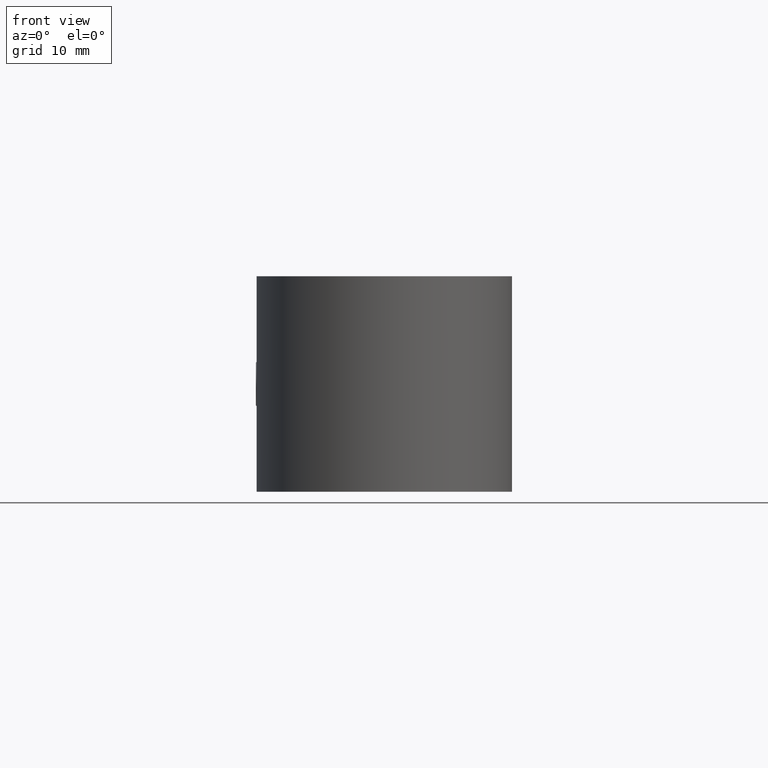
[diagram: clean part render]
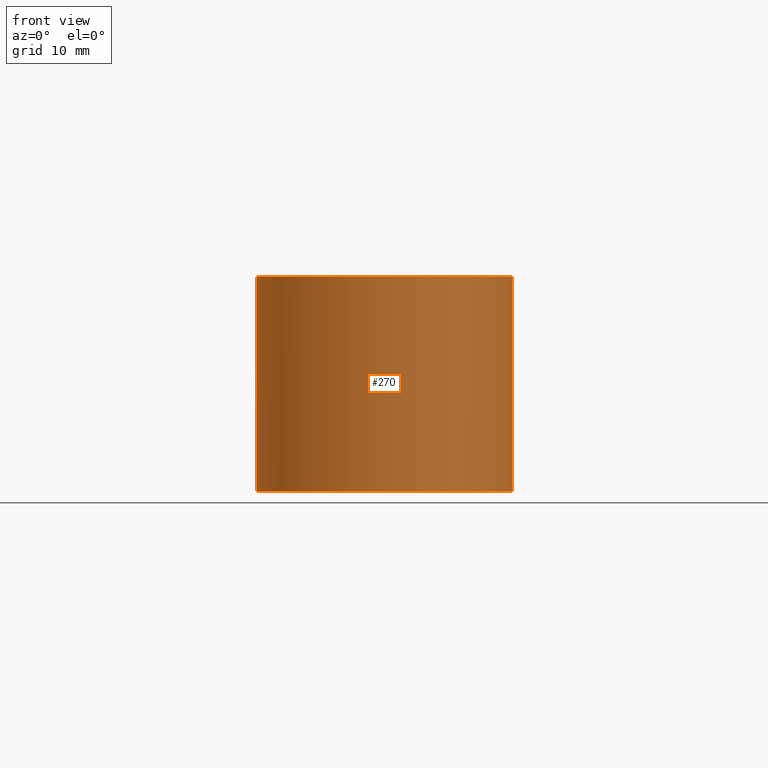
[diagram: same view with one face highlighted and labeled with its STEP entity id]
A machine part, front view. The second image highlights one B-rep face of the part: STEP entity #270.
In plain terms, the highlighted cylindrical surface (partial cylindrical patch) has radius 14.89 mm, axis along (0, 0, -1).
Its self-contained STEP definition (entity closure, byte-faithful):
#270 = ADVANCED_FACE( '', ( #376 ), #377, .T. );
#376 = FACE_OUTER_BOUND( '', #608, .T. );
#377 = CYLINDRICAL_SURFACE( '', #609, 14.8900000000000 );
#608 = EDGE_LOOP( '', ( #863, #864, #865, #866, #867, #868, #869, #870, #871, #872, #873, #874 ) );
#609 = AXIS2_PLACEMENT_3D( '', #875, #876, #877 );
#863 = ORIENTED_EDGE( '', *, *, #1635, .F. );
#864 = ORIENTED_EDGE( '', *, *, #1634, .T. );
#865 = ORIENTED_EDGE( '', *, *, #1636, .F. );
#866 = ORIENTED_EDGE( '', *, *, #1637, .F. );
#867 = ORIENTED_EDGE( '', *, *, #1638, .F. );
#868 = ORIENTED_EDGE( '', *, *, #1639, .F. );
#869 = ORIENTED_EDGE( '', *, *, #1640, .F. );
#870 = ORIENTED_EDGE( '', *, *, #1641, .F. );
#871 = ORIENTED_EDGE( '', *, *, #1623, .T. );
#872 = ORIENTED_EDGE( '', *, *, #1642, .T. );
#873 = ORIENTED_EDGE( '', *, *, #1643, .F. );
#874 = ORIENTED_EDGE( '', *, *, #1644, .F. );
#875 = CARTESIAN_POINT( '', ( 0.000000000000000, 0.000000000000000, -12.5000000000000 ) );
#876 = DIRECTION( '', ( 0.000000000000000, 0.000000000000000, -1.00000000000000 ) );
#877 = DIRECTION( '', ( -1.00000000000000, 6.06692130572647E-017, 0.000000000000000 ) );
#1623 = EDGE_CURVE( '', #1869, #1867, #1870, .T. );
#1634 = EDGE_CURVE( '', #1884, #1888, #1890, .T. );
#1635 = EDGE_CURVE( '', #1884, #1891, #1892, .F. );
#1636 = EDGE_CURVE( '', #1893, #1888, #1894, .T. );
#1637 = EDGE_CURVE( '', #1895, #1893, #1896, .T. );
#1638 = EDGE_CURVE( '', #1897, #1895, #1898, .F. );
#1639 = EDGE_CURVE( '', #1899, #1897, #1900, .T. );
#1640 = EDGE_CURVE( '', #1901, #1899, #1902, .F. );
#1641 = EDGE_CURVE( '', #1869, #1901, #1903, .T. );
#1642 = EDGE_CURVE( '', #1867, #1904, #1905, .T. );
#1643 = EDGE_CURVE( '', #1906, #1904, #1907, .F. );
#1644 = EDGE_CURVE( '', #1891, #1906, #1908, .T. );
#1867 = VERTEX_POINT( '', #2271 );
#1869 = VERTEX_POINT( '', #2273 );
#1870 = CIRCLE( '', #2274, 14.8900000000000 );
#1884 = VERTEX_POINT( '', #2292 );
#1888 = VERTEX_POINT( '', #2297 );
#1890 = LINE( '', #2299, #2300 );
#1891 = VERTEX_POINT( '', #2301 );
#1892 = ELLIPSE( '', #2302, 25.9599227867982, 14.8900000000000 );
#1893 = VERTEX_POINT( '', #2303 );
#1894 = CIRCLE( '', #2304, 14.8900000000000 );
#1895 = VERTEX_POINT( '', #2305 );
#1896 = LINE( '', #2306, #2307 );
#1897 = VERTEX_POINT( '', #2308 );
#1898 = ELLIPSE( '', #2309, 25.9599227867982, 14.8900000000000 );
#1899 = VERTEX_POINT( '', #2310 );
#1900 = B_SPLINE_CURVE_WITH_KNOTS( '', 3, ( #2311, #2312, #2313, #2314, #2315, #2316, #2317, #2318, #2319, #2320, #2321, #2322, #2323, #2324, #2325, #2326, #2327, #2328 ), .UNSPECIFIED., .F., .F., ( 4, 2, 2, 2, 2, 2, 2, 2, 4 ), ( 1.22663473334670E-018, 0.000680424414248581, 0.00136084882849716, 0.00204127324274574, 0.00272169765699432, 0.00340212207124290, 0.00408254648549148, 0.00476297089974006, 0.00544339531398864 ), .UNSPECIFIED. );
#1901 = VERTEX_POINT( '', #2329 );
#1902 = ELLIPSE( '', #2330, 25.9599227867981, 14.8900000000000 );
#1903 = LINE( '', #2331, #2332 );
#1904 = VERTEX_POINT( '', #2333 );
#1905 = LINE( '', #2334, #2335 );
#1906 = VERTEX_POINT( '', #2336 );
#1907 = ELLIPSE( '', #2337, 25.9599227867981, 14.8900000000000 );
#1908 = B_SPLINE_CURVE_WITH_KNOTS( '', 3, ( #2338, #2339, #2340, #2341, #2342, #2343, #2344, #2345, #2346, #2347, #2348, #2349, #2350, #2351, #2352, #2353, #2354, #2355, #2356, #2357 ), .UNSPECIFIED., .F., .F., ( 4, 2, 2, 2, 2, 2, 2, 2, 2, 4 ), ( 0.000000000000000, 0.000679638628458912, 0.00135927725691782, 0.00203891588537674, 0.00271855451383565, 0.00305837382806510, 0.00339819314229456, 0.00407783177075347, 0.00475747039921238, 0.00543710902767129 ), .UNSPECIFIED. );
#2271 = CARTESIAN_POINT( '', ( 5.94137507673420, 13.6532839345544, -12.5000000000000 ) );
#2273 = CARTESIAN_POINT( '', ( -5.94137507673419, 13.6532839345544, -12.5000000000000 ) );
#2274 = AXIS2_PLACEMENT_3D( '', #2973, #2974, #2975 );
#2292 = CARTESIAN_POINT( '', ( 5.94137507673420, 13.6532839345544, 3.10582604681296 ) );
#2297 = CARTESIAN_POINT( '', ( 5.94137507673420, 13.6532839345544, 12.5000000000000 ) );
#2299 = CARTESIAN_POINT( '', ( 5.94137507673420, 13.6532839345544, -12.5000000000000 ) );
#2300 = VECTOR( '', #2996, 1000.00000000000 );
#2301 = CARTESIAN_POINT( '', ( 6.78151181194868, 13.2560626712610, 2.29430574540416 ) );
#2302 = AXIS2_PLACEMENT_3D( '', #2997, #2998, #2999 );
#2303 = CARTESIAN_POINT( '', ( -5.94137507673420, 13.6532839345544, 12.5000000000000 ) );
#2304 = AXIS2_PLACEMENT_3D( '', #3000, #3001, #3002 );
#2305 = CARTESIAN_POINT( '', ( -5.94137507673420, 13.6532839345544, 3.10582604681296 ) );
#2306 = CARTESIAN_POINT( '', ( -5.94137507673420, 13.6532839345544, -12.5000000000000 ) );
#2307 = VECTOR( '', #3003, 1000.00000000000 );
#2308 = CARTESIAN_POINT( '', ( -6.78151181194868, 13.2560626712610, 2.29430574540416 ) );
#2309 = AXIS2_PLACEMENT_3D( '', #3004, #3005, #3006 );
#2310 = CARTESIAN_POINT( '', ( -6.78151181194866, 13.2560626712611, -2.29430574540419 ) );
#2311 = CARTESIAN_POINT( '', ( -6.78151181194868, 13.2560626712610, -2.29430574540421 ) );
#2312 = CARTESIAN_POINT( '', ( -6.93751466090581, 13.1762550248176, -2.14753834100919 ) );
#2313 = CARTESIAN_POINT( '', ( -7.08344164235556, 13.0981082713896, -1.99178012235953 ) );
#2314 = CARTESIAN_POINT( '', ( -7.35152905171580, 12.9495407791736, -1.65734997334812 ) );
#2315 = CARTESIAN_POINT( '', ( -7.47467893445725, 12.8785151938136, -1.47716974278923 ) );
#2316 = CARTESIAN_POINT( '', ( -7.68466266287117, 12.7543301873670, -1.09163327277356 ) );
#2317 = CARTESIAN_POINT( '', ( -7.77075630033370, 12.7016747253823, -0.888427473592780 ) );
#2318 = CARTESIAN_POINT( '', ( -7.89216601962584, 12.6265953379070, -0.452724835059774 ) );
#2319 = CARTESIAN_POINT( '', ( -7.92472194765010, 12.6059859622944, -0.227372808366124 ) );
#2320 = CARTESIAN_POINT( '', ( -7.92443295516349, 12.6061676320859, 0.230431196964999 ) );
#2321 = CARTESIAN_POINT( '', ( -7.89130715193910, 12.6271326253975, 0.456898733528781 ) );
#2322 = CARTESIAN_POINT( '', ( -7.76974185705234, 12.7022957917218, 0.890959323747129 ) );
#2323 = CARTESIAN_POINT( '', ( -7.68225392798807, 12.7557759790412, 1.09661576055200 ) );
#2324 = CARTESIAN_POINT( '', ( -7.47318867811233, 12.8793748770236, 1.47933536435769 ) );
#2325 = CARTESIAN_POINT( '', ( -7.34953380224073, 12.9506770278524, 1.66013891565063 ) );
#2326 = CARTESIAN_POINT( '', ( -7.08086837347808, 13.0995032603339, 1.99468510723603 ) );
#2327 = CARTESIAN_POINT( '', ( -6.93565324052198, 13.1772072867850, 2.14928956440055 ) );
#2328 = CARTESIAN_POINT( '', ( -6.78151181194868, 13.2560626712610, 2.29430574540415 ) );
#2329 = CARTESIAN_POINT( '', ( -5.94137507673420, 13.6532839345544, -3.10582604681300 ) );
#2330 = AXIS2_PLACEMENT_3D( '', #3007, #3008, #3009 );
#2331 = CARTESIAN_POINT( '', ( -5.94137507673420, 13.6532839345544, -12.5000000000000 ) );
#2332 = VECTOR( '', #3010, 1000.00000000000 );
#2333 = CARTESIAN_POINT( '', ( 5.94137507673420, 13.6532839345544, -3.10582604681300 ) );
#2334 = CARTESIAN_POINT( '', ( 5.94137507673420, 13.6532839345544, -12.5000000000000 ) );
#2335 = VECTOR( '', #3011, 1000.00000000000 );
#2336 = CARTESIAN_POINT( '', ( 6.78151181194866, 13.2560626712611, -2.29430574540419 ) );
#2337 = AXIS2_PLACEMENT_3D( '', #3012, #3013, #3014 );
#2338 = CARTESIAN_POINT( '', ( 6.78151181194868, 13.2560626712610, 2.29430574540416 ) );
#2339 = CARTESIAN_POINT( '', ( 6.93733450155337, 13.1763471904030, 2.14770783484025 ) );
#2340 = CARTESIAN_POINT( '', ( 7.08310424219975, 13.0982889973625, 1.99213948313857 ) );
#2341 = CARTESIAN_POINT( '', ( 7.35093755614544, 12.9498748028677, 1.65814916609281 ) );
#2342 = CARTESIAN_POINT( '', ( 7.47398344515693, 12.8789184357816, 1.47823350666047 ) );
#2343 = CARTESIAN_POINT( '', ( 7.68390254126887, 12.7547877422667, 1.09324058065952 ) );
#2344 = CARTESIAN_POINT( '', ( 7.77001583062047, 12.7021284133029, 0.890336552509822 ) );
#2345 = CARTESIAN_POINT( '', ( 7.89164274308365, 12.6269231031026, 0.455343210671177 ) );
#2346 = CARTESIAN_POINT( '', ( 7.92442237126661, 12.6061742854560, 0.230234105005796 ) );
#2347 = CARTESIAN_POINT( '', ( 7.92465488006649, 12.6060281230933, -0.112653084304653 ) );
#2348 = CARTESIAN_POINT( '', ( 7.91648407813854, 12.6111745748000, -0.227577240602229 ) );
#2349 = CARTESIAN_POINT( '', ( 7.88502774786633, 12.6308662304246, -0.451601441573954 ) );
#2350 = CARTESIAN_POINT( '', ( 7.86177017195947, 12.6453916594895, -0.561739409636078 ) );
#2351 = CARTESIAN_POINT( '', ( 7.77118356862313, 12.7014112513986, -0.887027558110734 ) );
#2352 = CARTESIAN_POINT( '', ( 7.68405187748147, 12.7546889826429, -1.09269052873267 ) );
#2353 = CARTESIAN_POINT( '', ( 7.47573138202849, 12.8778951930637, -1.47530144584968 ) );
#2354 = CARTESIAN_POINT( '', ( 7.35270028108238, 12.9488825898804, -1.65579903371912 ) );
#2355 = CARTESIAN_POINT( '', ( 7.08361817997110, 13.0980195155725, -1.99164931848076 ) );
#2356 = CARTESIAN_POINT( '', ( 6.93743976730353, 13.1762933387469, -2.14760880087377 ) );
#2357 = CARTESIAN_POINT( '', ( 6.78151181194869, 13.2560626712610, -2.29430574540421 ) );
#2973 = CARTESIAN_POINT( '', ( 0.000000000000000, 0.000000000000000, -12.5000000000000 ) );
#2974 = DIRECTION( '', ( 0.000000000000000, 0.000000000000000, 1.00000000000000 ) );
#2975 = DIRECTION( '', ( 1.00000000000000, 0.000000000000000, 0.000000000000000 ) );
#2996 = DIRECTION( '', ( 0.000000000000000, 0.000000000000000, 1.00000000000000 ) );
#2997 = CARTESIAN_POINT( '', ( 0.000000000000000, 0.000000000000000, 19.5184816173857 ) );
#2998 = DIRECTION( '', ( 0.729869815763731, 0.371887245949431, 0.573576436351046 ) );
#2999 = DIRECTION( '', ( -0.511060346909496, -0.260398252977840, 0.819152044288992 ) );
#3000 = CARTESIAN_POINT( '', ( 0.000000000000000, 0.000000000000000, 12.5000000000000 ) );
#3001 = DIRECTION( '', ( 0.000000000000000, 0.000000000000000, 1.00000000000000 ) );
#3002 = DIRECTION( '', ( 1.00000000000000, 0.000000000000000, 0.000000000000000 ) );
#3003 = DIRECTION( '', ( 0.000000000000000, 0.000000000000000, 1.00000000000000 ) );
#3004 = CARTESIAN_POINT( '', ( 0.000000000000000, 0.000000000000000, 19.5184816173857 ) );
#3005 = DIRECTION( '', ( -0.729869815763731, 0.371887245949431, 0.573576436351046 ) );
#3006 = DIRECTION( '', ( 0.511060346909496, -0.260398252977840, 0.819152044288992 ) );
#3007 = CARTESIAN_POINT( '', ( 0.000000000000000, 0.000000000000000, -19.5184816173858 ) );
#3008 = DIRECTION( '', ( -0.729869815763730, 0.371887245949432, -0.573576436351046 ) );
#3009 = DIRECTION( '', ( -0.511060346909496, 0.260398252977841, 0.819152044288992 ) );
#3010 = DIRECTION( '', ( 0.000000000000000, 0.000000000000000, 1.00000000000000 ) );
#3011 = DIRECTION( '', ( 0.000000000000000, 0.000000000000000, 1.00000000000000 ) );
#3012 = CARTESIAN_POINT( '', ( 0.000000000000000, 0.000000000000000, -19.5184816173858 ) );
#3013 = DIRECTION( '', ( 0.729869815763730, 0.371887245949432, -0.573576436351046 ) );
#3014 = DIRECTION( '', ( 0.511060346909496, 0.260398252977841, 0.819152044288992 ) );